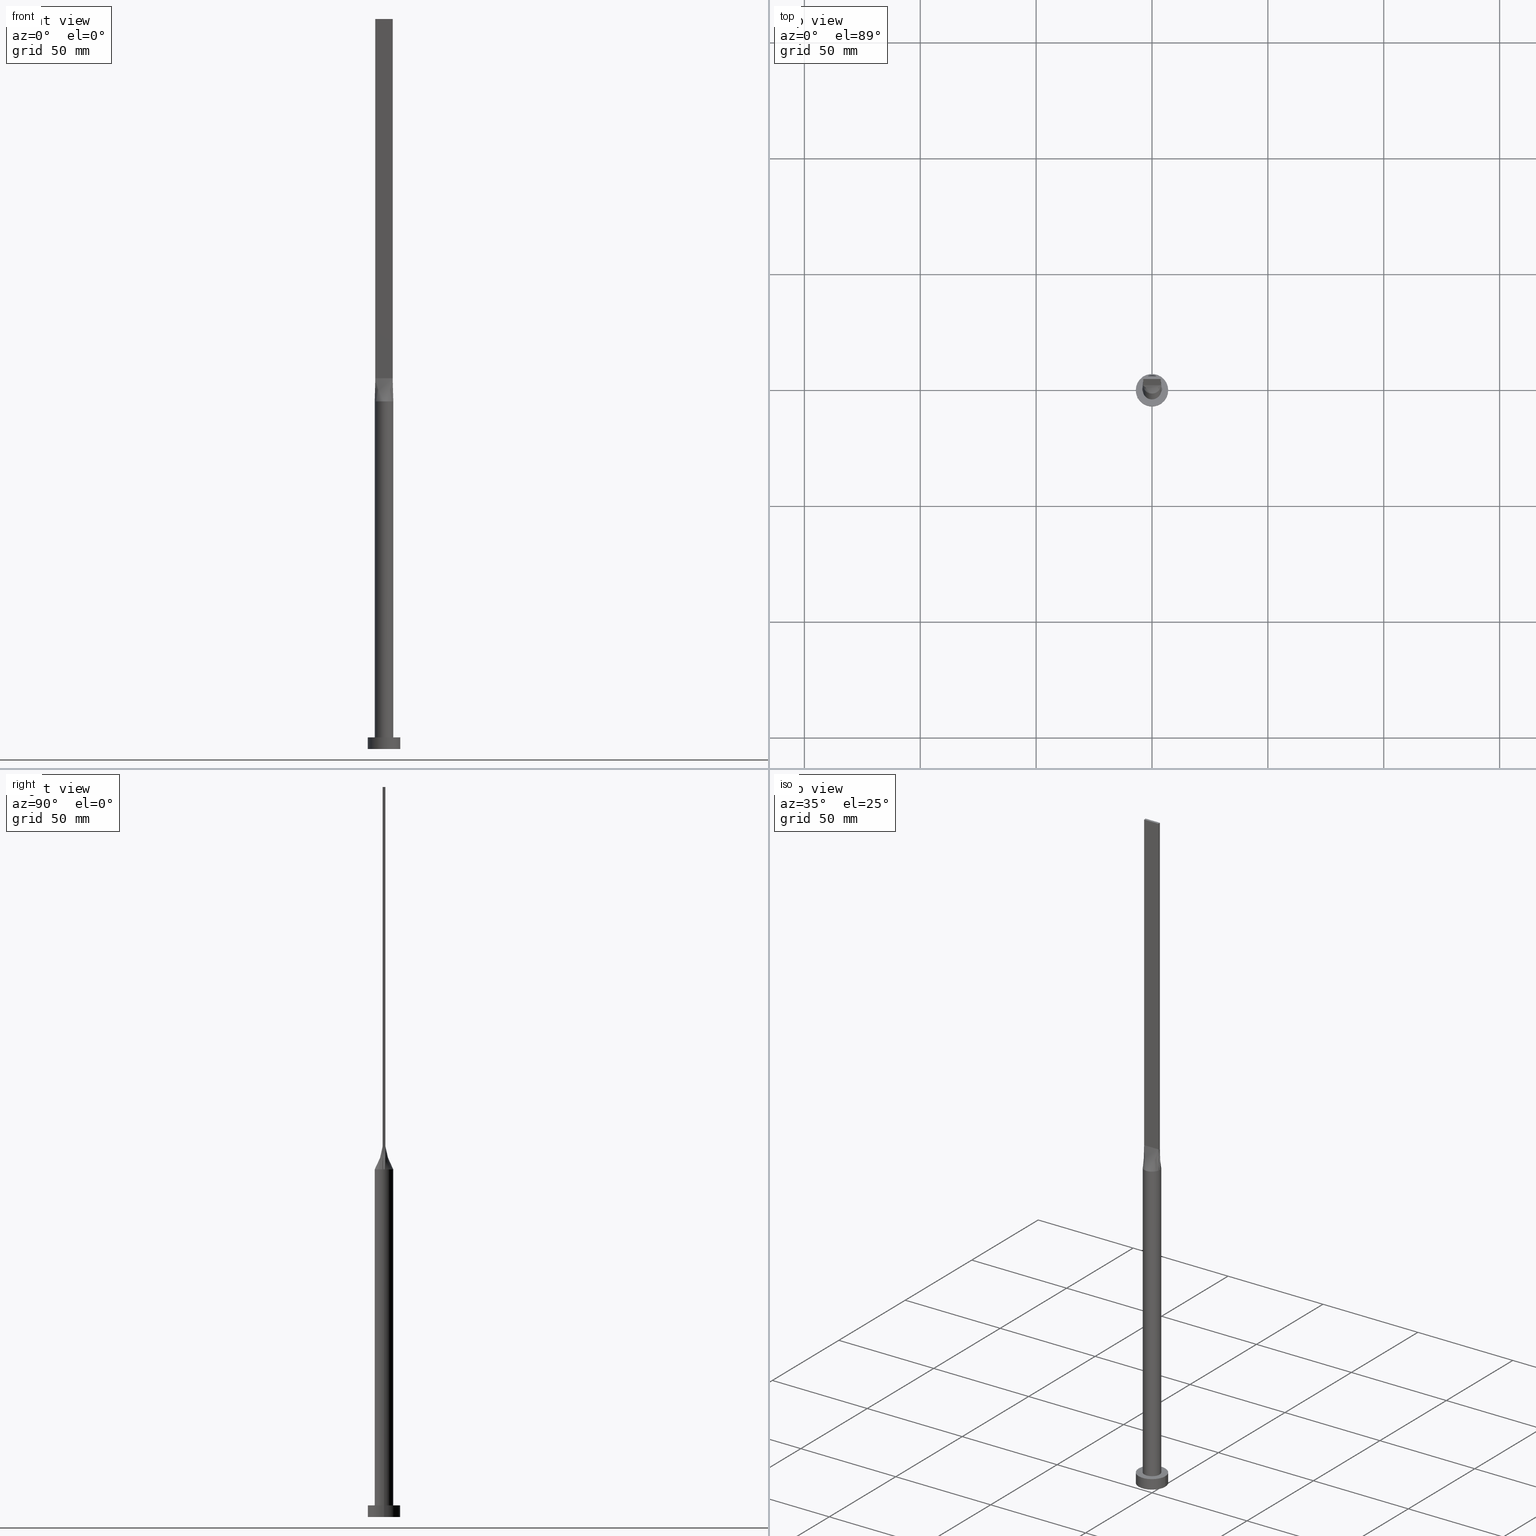
[diagram: canonical four-view strip — front | top / right | iso, engineering-drawing reading convention]
A machine part, canonical four-view strip (front | top / right | iso — engineering-drawing reading convention). The complete STEP part file that produces these views, byte-faithful:
ISO-10303-21;
HEADER;
FILE_DESCRIPTION (( 'STEP AP203' ),
    '1' );
FILE_NAME ('5bc6.STEP',
    '2023-02-13T10:46:18',
    ( '' ),
    ( '' ),
    'SwSTEP 2.0',
    'SolidWorks 2019',
    '' );
FILE_SCHEMA (( 'CONFIG_CONTROL_DESIGN' ));
ENDSEC;

DATA;
#1 = UNCERTAINTY_MEASURE_WITH_UNIT (LENGTH_MEASURE( 1.000000000000000082E-05 ), #64, 'distance_accuracy_value', 'NONE');
#2 = DIRECTION ( 'NONE',  ( 0.000000000000000000, 0.000000000000000000, 1.000000000000000000 ) ) ;
#3 = CARTESIAN_POINT ( 'NONE',  ( 3.897760447583618948, 0.9569750049467118380, 149.9999999999999716 ) ) ;
#4 = CARTESIAN_POINT ( 'NONE',  ( 1.134810363096319108, -3.874001625491798162, 150.0000000000000000 ) ) ;
#5 = DIRECTION ( 'NONE',  ( 1.000000000000000000, 0.000000000000000000, 0.000000000000000000 ) ) ;
#6 = ORIENTED_EDGE ( 'NONE', *, *, #313, .T. ) ;
#7 = CARTESIAN_POINT ( 'NONE',  ( 3.949762527666821565, -0.6319620044266891501, 150.0000000000000000 ) ) ;
#8 = DIRECTION ( 'NONE',  ( 0.000000000000000000, 0.000000000000000000, 1.000000000000000000 ) ) ;
#9 = CARTESIAN_POINT ( 'NONE',  ( 0.5684794080625145130, 4.000000000000000000, 150.0000000000000000 ) ) ;
#10 = CARTESIAN_POINT ( 'NONE',  ( 3.461914487322979017, 2.043998057340944197, 150.0000000000000000 ) ) ;
#11 = CC_DESIGN_PERSON_AND_ORGANIZATION_ASSIGNMENT ( #253, #564, ( #394 ) ) ;
#12 = CARTESIAN_POINT ( 'NONE',  ( 0.000000000000000000, 0.000000000000000000, 150.0000000000000000 ) ) ;
#13 = APPLICATION_CONTEXT ( 'configuration controlled 3d designs of mechanical parts and assemblies' ) ;
#14 = PERSON_AND_ORGANIZATION ( #249, #267 ) ;
#15 = ORIENTED_EDGE ( 'NONE', *, *, #321, .F. ) ;
#16 = LOCAL_TIME ( 11, 46, 18.00000000000000000, #569 ) ;
#17 = ORIENTED_EDGE ( 'NONE', *, *, #377, .F. ) ;
#18 = CC_DESIGN_DATE_AND_TIME_ASSIGNMENT ( #246, #296, ( #217 ) ) ;
#19 = EDGE_LOOP ( 'NONE', ( #207, #339, #467, #167, #149, #15 ) ) ;
#20 = CARTESIAN_POINT ( 'NONE',  ( -2.187500000000000000, 0.6000000000000000888, 159.9999999999999716 ) ) ;
#21 = VERTEX_POINT ( 'NONE', #71 ) ;
#22 = VECTOR ( 'NONE', #526, 1000.000000000000000 ) ;
#23 = VERTEX_POINT ( 'NONE', #36 ) ;
#24 = DIRECTION ( 'NONE',  ( -0.000000000000000000, -0.000000000000000000, -1.000000000000000000 ) ) ;
#25 = EDGE_CURVE ( 'NONE', #114, #558, #85, .T. ) ;
#26 = VERTEX_POINT ( 'NONE', #117 ) ;
#27 = DIRECTION ( 'NONE',  ( -1.000000000000000000, 5.782411586589357392E-17, 0.000000000000000000 ) ) ;
#28 = VECTOR ( 'NONE', #567, 1000.000000000000000 ) ;
#29 = CALENDAR_DATE ( 2023, 13, 2 ) ;
#30 = ORIENTED_EDGE ( 'NONE', *, *, #444, .F. ) ;
#31 = CARTESIAN_POINT ( 'NONE',  ( -7.000000000000000000, 0.000000000000000000, 5.000000000000000000 ) ) ;
#32 = DIRECTION ( 'NONE',  ( 0.01997216621675831222, -0.003195546594681202349, 0.9997954296047624201 ) ) ;
#33 = CIRCLE ( 'NONE', #222, 4.000000000000000000 ) ;
#34 = LINE ( 'NONE', #442, #325 ) ;
#35 = DATE_AND_TIME ( #576, #210 ) ;
#36 = CARTESIAN_POINT ( 'NONE',  ( 3.750000000000000000, 0.6000000000000001998, 160.0000000000000000 ) ) ;
#37 = CARTESIAN_POINT ( 'NONE',  ( 0.000000000000000000, 0.000000000000000000, 150.0000000000000000 ) ) ;
#38 = CARTESIAN_POINT ( 'NONE',  ( 3.999842262273348936, 9.852009208038395466E-16, 150.0000000000000000 ) ) ;
#39 = B_SPLINE_SURFACE_WITH_KNOTS ( 'NONE', 3, 1, ( 
 ( #134, #415 ),
 ( #3, #93 ),
 ( #320, #503 ),
 ( #10, #445 ),
 ( #221, #581 ),
 ( #175, #132 ),
 ( #177, #314 ),
 ( #269, #451 ),
 ( #471, #418 ),
 ( #235, #109 ),
 ( #425, #148 ),
 ( #58, #511 ),
 ( #466, #239 ),
 ( #189, #20 ),
 ( #111, #562 ),
 ( #152, #381 ),
 ( #513, #281 ),
 ( #461, #55 ) ),
 .UNSPECIFIED., .F., .F., .F.,
 ( 4, 2, 2, 2, 2, 2, 2, 2, 4 ),
 ( 2, 2 ),
 ( 0.000000000000000000, 0.1249999999999999445, 0.2499999999999998890, 0.3749999999999998335, 0.4999999999999997780, 0.6249999999999997780, 0.7499999999999998890, 0.8749999999999998890, 1.000000000000000000 ),
 ( 0.000000000000000000, 1.000000000000000000 ),
 .UNSPECIFIED. ) ;
#40 = DIRECTION ( 'NONE',  ( 0.000000000000000000, -1.000000000000000000, 0.000000000000000000 ) ) ;
#41 = LINE ( 'NONE', #312, #277 ) ;
#42 = CARTESIAN_POINT ( 'NONE',  ( 3.949762527666821565, 0.6319620044266899273, 150.0000000000000000 ) ) ;
#43 = AXIS2_PLACEMENT_3D ( 'NONE', #326, #329, #145 ) ;
#44 = CARTESIAN_POINT ( 'NONE',  ( 3.219262664220058134, 2.422342486356523938, 150.0000000000000000 ) ) ;
#45 = CARTESIAN_POINT ( 'NONE',  ( -4.000000000000000000, 0.000000000000000000, 150.0000000000000000 ) ) ;
#46 = DIRECTION ( 'NONE',  ( 0.000000000000000000, 0.000000000000000000, 1.000000000000000000 ) ) ;
#47 = CARTESIAN_POINT ( 'NONE',  ( 3.749999999999999556, 0.4000000000000007994, 159.9999999999999716 ) ) ;
#48 = ORIENTED_EDGE ( 'NONE', *, *, #383, .T. ) ;
#49 = CARTESIAN_POINT ( 'NONE',  ( -2.127794970397209884, 3.430476893735948440, 150.0000000000000000 ) ) ;
#50 = CARTESIAN_POINT ( 'NONE',  ( 4.000000000000000000, 4.898587196589412829E-16, 150.0000000000000000 ) ) ;
#51 = EDGE_LOOP ( 'NONE', ( #243, #17, #373, #330 ) ) ;
#52 = PLANE ( 'NONE',  #545 ) ;
#53 = PLANE ( 'NONE',  #43 ) ;
#54 = VERTEX_POINT ( 'NONE', #570 ) ;
#55 = CARTESIAN_POINT ( 'NONE',  ( -3.750000000000000000, 0.6000000000000001998, 160.0000000000000000 ) ) ;
#56 = EDGE_LOOP ( 'NONE', ( #577, #437, #65, #378 ) ) ;
#57 = EDGE_CURVE ( 'NONE', #472, #26, #160, .T. ) ;
#58 = CARTESIAN_POINT ( 'NONE',  ( -2.127794970397209884, 3.430476893735948440, 150.0000000000000000 ) ) ;
#59 = EDGE_LOOP ( 'NONE', ( #311, #463 ) ) ;
#60 = ADVANCED_FACE ( 'NONE', ( #263, #565 ), #487, .T. ) ;
#61 = CC_DESIGN_APPROVAL ( #80, ( #259 ) ) ;
#62 = DIRECTION ( 'NONE',  ( 1.000000000000000000, 0.000000000000000000, 0.000000000000000000 ) ) ;
#63 = ORIENTED_EDGE ( 'NONE', *, *, #427, .T. ) ;
#64 =( LENGTH_UNIT ( ) NAMED_UNIT ( * ) SI_UNIT ( .MILLI., .METRE. ) );
#65 = ORIENTED_EDGE ( 'NONE', *, *, #358, .F. ) ;
#66 = CLOSED_SHELL ( 'NONE', ( #260, #178, #475, #60, #552, #159, #165, #501, #395, #532, #464, #347, #340, #405, #334 ) ) ;
#67 = EDGE_CURVE ( 'NONE', #54, #439, #434, .T. ) ;
#68 = PERSON_AND_ORGANIZATION_ROLE ( 'creator' ) ;
#69 = ORIENTED_EDGE ( 'NONE', *, *, #482, .T. ) ;
#70 = DATE_AND_TIME ( #169, #423 ) ;
#71 = CARTESIAN_POINT ( 'NONE',  ( -3.750000000000000000, -0.5999999999999993117, 160.0000000000000000 ) ) ;
#72 = CARTESIAN_POINT ( 'NONE',  ( -3.949762527666821565, -0.6319620044266894832, 150.0000000000000000 ) ) ;
#73 = CALENDAR_DATE ( 2023, 13, 2 ) ;
#74 = VERTEX_POINT ( 'NONE', #483 ) ;
#75 = DIRECTION ( 'NONE',  ( 0.000000000000000000, 0.000000000000000000, 1.000000000000000000 ) ) ;
#76 = VECTOR ( 'NONE', #499, 1000.000000000000000 ) ;
#77 = PERSON_AND_ORGANIZATION ( #249, #267 ) ;
#78 = EDGE_LOOP ( 'NONE', ( #150, #557, #284, #94, #452 ) ) ;
#79 = CARTESIAN_POINT ( 'NONE',  ( -3.949762527666821565, 0.6319620044266903713, 150.0000000000000000 ) ) ;
#80 = APPROVAL ( #479, 'NEUR�EN�' ) ;
#81 = COORDINATED_UNIVERSAL_TIME_OFFSET ( 1, 0, .AHEAD. ) ;
#82 = CARTESIAN_POINT ( 'NONE',  ( -3.437499999999999112, -0.5999999999999993117, 160.0000000000000000 ) ) ;
#83 = AXIS2_PLACEMENT_3D ( 'NONE', #158, #481, #301 ) ;
#84 = CARTESIAN_POINT ( 'NONE',  ( 3.750000000000000000, -0.5999999999999997558, 315.0000000000000000 ) ) ;
#85 = LINE ( 'NONE', #203, #419 ) ;
#86 = DIRECTION ( 'NONE',  ( 0.000000000000000000, 0.000000000000000000, 1.000000000000000000 ) ) ;
#87 = DESIGN_CONTEXT ( 'detailed design', #13, 'design' ) ;
#88 = CARTESIAN_POINT ( 'NONE',  ( 3.750000000000000000, 0.6000000000000001998, 315.0000000000000000 ) ) ;
#89 = EDGE_CURVE ( 'NONE', #156, #23, #261, .T. ) ;
#90 = DIRECTION ( 'NONE',  ( 0.000000000000000000, 0.000000000000000000, 1.000000000000000000 ) ) ;
#91 = ORIENTED_EDGE ( 'NONE', *, *, #470, .F. ) ;
#92 = CARTESIAN_POINT ( 'NONE',  ( 0.5684794080625150681, -4.000000000000000888, 150.0000000000000000 ) ) ;
#93 = CARTESIAN_POINT ( 'NONE',  ( 3.437499999999999556, 0.6000000000000001998, 160.0000000000000000 ) ) ;
#94 = ORIENTED_EDGE ( 'NONE', *, *, #383, .F. ) ;
#95 = CC_DESIGN_APPROVAL ( #542, ( #217 ) ) ;
#96 = CARTESIAN_POINT ( 'NONE',  ( 2.127794970397208107, 3.430476893735948885, 150.0000000000000000 ) ) ;
#97 = DIRECTION ( 'NONE',  ( -1.000000000000000000, 0.000000000000000000, 0.000000000000000000 ) ) ;
#98 = CARTESIAN_POINT ( 'NONE',  ( -0.5684794080625158452, 3.999999999999999112, 149.9999999999999432 ) ) ;
#99 = LINE ( 'NONE', #549, #489 ) ;
#100 = CARTESIAN_POINT ( 'NONE',  ( 3.125000000000000000, -0.5999999999999996447, 159.9999999999999716 ) ) ;
#101 = EDGE_LOOP ( 'NONE', ( #285, #506, #289, #336, #519 ) ) ;
#102 = CIRCLE ( 'NONE', #294, 4.000000000000000000 ) ;
#103 = CARTESIAN_POINT ( 'NONE',  ( 3.750000000000000000, 0.6000000000000001998, 315.0000000000000000 ) ) ;
#104 = PERSON_AND_ORGANIZATION_ROLE ( 'design_owner' ) ;
#105 = ORIENTED_EDGE ( 'NONE', *, *, #291, .T. ) ;
#106 = MANIFOLD_SOLID_BREP ( 'P�idat vysunut�m5', #66 ) ;
#107 = CARTESIAN_POINT ( 'NONE',  ( -3.750000000000000000, 0.6000000000000001998, 160.0000000000000000 ) ) ;
#108 = ORIENTED_EDGE ( 'NONE', *, *, #509, .T. ) ;
#109 = CARTESIAN_POINT ( 'NONE',  ( -0.3125000000000017764, 0.6000000000000000888, 159.9999999999999716 ) ) ;
#110 = VERTEX_POINT ( 'NONE', #304 ) ;
#111 = CARTESIAN_POINT ( 'NONE',  ( -3.461914487322979905, 2.043998057340944197, 150.0000000000000568 ) ) ;
#112 = EDGE_LOOP ( 'NONE', ( #48, #254, #290, #333 ) ) ;
#113 = CC_DESIGN_PERSON_AND_ORGANIZATION_ASSIGNMENT ( #396, #68, ( #259 ) ) ;
#114 = VERTEX_POINT ( 'NONE', #157 ) ;
#115 = AXIS2_PLACEMENT_3D ( 'NONE', #402, #133, #174 ) ;
#116 = PERSON_AND_ORGANIZATION ( #249, #267 ) ;
#117 = CARTESIAN_POINT ( 'NONE',  ( -7.000000000000000000, 0.000000000000000000, 0.000000000000000000 ) ) ;
#118 = VECTOR ( 'NONE', #155, 1000.000000000000000 ) ;
#119 = PERSON_AND_ORGANIZATION ( #249, #267 ) ;
#120 = CARTESIAN_POINT ( 'NONE',  ( -3.461914487322979905, -2.043998057340941976, 150.0000000000000284 ) ) ;
#121 = CARTESIAN_POINT ( 'NONE',  ( 0.000000000000000000, 0.000000000000000000, 5.000000000000000000 ) ) ;
#122 = SHAPE_DEFINITION_REPRESENTATION ( #213, #299 ) ;
#123 = DIRECTION ( 'NONE',  ( 1.000000000000000000, 0.000000000000000000, -0.000000000000000000 ) ) ;
#124 = CARTESIAN_POINT ( 'NONE',  ( -3.849881263833410561, -0.6159810022133443974, 155.0000000000000000 ) ) ;
#125 = B_SPLINE_SURFACE_WITH_KNOTS ( 'NONE', 3, 1, ( 
 ( #505, #457 ),
 ( #494, #323 ),
 ( #276, #551 ),
 ( #232, #454 ),
 ( #184, #47 ),
 ( #42, #357 ) ),
 .UNSPECIFIED., .F., .F., .F.,
 ( 4, 2, 4 ),
 ( 2, 2 ),
 ( 0.000000000000000000, 0.5000000000000000000, 1.000000000000000000 ),
 ( 0.000000000000000000, 1.000000000000000000 ),
 .UNSPECIFIED. ) ;
#126 = CARTESIAN_POINT ( 'NONE',  ( 3.950097303404373150, 0.6320148730971616446, 150.0000000000000000 ) ) ;
#127 = DIRECTION ( 'NONE',  ( 1.000000000000000000, 0.000000000000000000, -0.000000000000000000 ) ) ;
#128 = VECTOR ( 'NONE', #317, 1000.000000000000000 ) ;
#129 = CARTESIAN_POINT ( 'NONE',  ( -1.562499999999996891, -0.5999999999999994227, 160.0000000000000000 ) ) ;
#130 = LINE ( 'NONE', #433, #147 ) ;
#131 = DIRECTION ( 'NONE',  ( 1.000000000000000000, 0.000000000000000000, 0.000000000000000000 ) ) ;
#132 = CARTESIAN_POINT ( 'NONE',  ( 1.562499999999998446, 0.6000000000000000888, 159.9999999999999716 ) ) ;
#133 = DIRECTION ( 'NONE',  ( -0.000000000000000000, -0.000000000000000000, -1.000000000000000000 ) ) ;
#134 = CARTESIAN_POINT ( 'NONE',  ( 3.949762527666821565, 0.6319620044266911485, 150.0000000000000000 ) ) ;
#135 = CARTESIAN_POINT ( 'NONE',  ( 0.000000000000000000, 0.000000000000000000, 150.0000000000000000 ) ) ;
#136 = AXIS2_PLACEMENT_3D ( 'NONE', #12, #234, #417 ) ;
#137 = CARTESIAN_POINT ( 'NONE',  ( 3.750000000000000000, 0.6000000000000001998, 315.0000000000000000 ) ) ;
#138 = ORIENTED_EDGE ( 'NONE', *, *, #509, .F. ) ;
#139 = LOCAL_TIME ( 11, 46, 18.00000000000000000, #436 ) ;
#140 = CARTESIAN_POINT ( 'NONE',  ( 3.461914487322979017, 2.043998057340944197, 150.0000000000000000 ) ) ;
#141 = FACE_OUTER_BOUND ( 'NONE', #56, .T. ) ;
#142 = CARTESIAN_POINT ( 'NONE',  ( -3.219262664220059023, 2.422342486356523938, 150.0000000000000284 ) ) ;
#143 = PLANE ( 'NONE',  #173 ) ;
#144 = DIRECTION ( 'NONE',  ( 0.000000000000000000, 0.000000000000000000, 1.000000000000000000 ) ) ;
#145 = DIRECTION ( 'NONE',  ( 1.000000000000000000, 0.000000000000000000, -0.000000000000000000 ) ) ;
#146 = EDGE_LOOP ( 'NONE', ( #105, #69, #512, #236 ) ) ;
#147 = VECTOR ( 'NONE', #24, 1000.000000000000000 ) ;
#148 = CARTESIAN_POINT ( 'NONE',  ( -0.6250000000000012212, 0.6000000000000000888, 159.9999999999999716 ) ) ;
#149 = ORIENTED_EDGE ( 'NONE', *, *, #252, .F. ) ;
#150 = ORIENTED_EDGE ( 'NONE', *, *, #252, .T. ) ;
#151 = AXIS2_PLACEMENT_3D ( 'NONE', #530, #297, #443 ) ;
#152 = CARTESIAN_POINT ( 'NONE',  ( -3.800365609718893811, 1.311488165564686392, 150.0000000000000284 ) ) ;
#153 = VERTEX_POINT ( 'NONE', #351 ) ;
#154 = EDGE_CURVE ( 'NONE', #21, #153, #480, .T. ) ;
#155 = DIRECTION ( 'NONE',  ( -0.000000000000000000, -0.000000000000000000, -1.000000000000000000 ) ) ;
#156 = VERTEX_POINT ( 'NONE', #126 ) ;
#157 = CARTESIAN_POINT ( 'NONE',  ( -3.950102418235696522, 0.6320155757311002320, 150.0000000000000000 ) ) ;
#158 = CARTESIAN_POINT ( 'NONE',  ( 0.000000000000000000, 0.000000000000000000, 0.000000000000000000 ) ) ;
#159 = ADVANCED_FACE ( 'NONE', ( #212 ), #162, .T. ) ;
#160 = CIRCLE ( 'NONE', #274, 7.000000000000000000 ) ;
#161 = DATE_TIME_ROLE ( 'classification_date' ) ;
#162 = CYLINDRICAL_SURFACE ( 'NONE', #151, 4.000000000000000000 ) ;
#163 = FACE_OUTER_BOUND ( 'NONE', #363, .T. ) ;
#164 = CIRCLE ( 'NONE', #136, 4.000000000000000000 ) ;
#165 = ADVANCED_FACE ( 'NONE', ( #397 ), #578, .T. ) ;
#166 = APPROVAL_ROLE ( '' ) ;
#167 = ORIENTED_EDGE ( 'NONE', *, *, #507, .F. ) ;
#168 = DIRECTION ( 'NONE',  ( -0.000000000000000000, 0.000000000000000000, -1.000000000000000000 ) ) ;
#169 = CALENDAR_DATE ( 2023, 13, 2 ) ;
#170 = CARTESIAN_POINT ( 'NONE',  ( -3.800365609718892923, -1.311488165564685726, 150.0000000000000284 ) ) ;
#171 = DIRECTION ( 'NONE',  ( 0.000000000000000000, -1.000000000000000000, 0.000000000000000000 ) ) ;
#172 = DIRECTION ( 'NONE',  ( -0.000000000000000000, -0.000000000000000000, -1.000000000000000000 ) ) ;
#173 = AXIS2_PLACEMENT_3D ( 'NONE', #137, #40, #360 ) ;
#174 = DIRECTION ( 'NONE',  ( -1.000000000000000000, 0.000000000000000000, 0.000000000000000000 ) ) ;
#175 = CARTESIAN_POINT ( 'NONE',  ( 2.553164211252348714, 3.116528153703943538, 150.0000000000000000 ) ) ;
#176 = CARTESIAN_POINT ( 'NONE',  ( 2.127794970397208552, -3.430476893735948440, 150.0000000000000000 ) ) ;
#177 = CARTESIAN_POINT ( 'NONE',  ( 2.127794970397208107, 3.430476893735948885, 150.0000000000000000 ) ) ;
#178 = ADVANCED_FACE ( 'NONE', ( #278 ), #316, .T. ) ;
#179 = CARTESIAN_POINT ( 'NONE',  ( 3.897760447583619836, -0.9569750049467118380, 150.0000000000000284 ) ) ;
#180 = CARTESIAN_POINT ( 'NONE',  ( 0.000000000000000000, 0.000000000000000000, 5.000000000000000000 ) ) ;
#181 = EDGE_LOOP ( 'NONE', ( #421, #318, #429, #6 ) ) ;
#182 = CARTESIAN_POINT ( 'NONE',  ( 0.3125000000000029976, -0.5999999999999995337, 159.9999999999999716 ) ) ;
#183 = CC_DESIGN_PERSON_AND_ORGANIZATION_ASSIGNMENT ( #77, #256, ( #259 ) ) ;
#184 = CARTESIAN_POINT ( 'NONE',  ( 3.983043858920071845, 0.4239536840938771811, 150.0000000000000000 ) ) ;
#185 = CARTESIAN_POINT ( 'NONE',  ( -0.6249999999999965583, -0.5999999999999994227, 160.0000000000000000 ) ) ;
#186 = FACE_OUTER_BOUND ( 'NONE', #51, .T. ) ;
#187 = CARTESIAN_POINT ( 'NONE',  ( 0.000000000000000000, 0.000000000000000000, 315.0000000000000000 ) ) ;
#188 =( NAMED_UNIT ( * ) SI_UNIT ( $, .STERADIAN. ) SOLID_ANGLE_UNIT ( ) );
#189 = CARTESIAN_POINT ( 'NONE',  ( -3.219262664220059023, 2.422342486356523938, 150.0000000000000284 ) ) ;
#190 = EDGE_LOOP ( 'NONE', ( #192, #108 ) ) ;
#191 = APPROVAL_PERSON_ORGANIZATION ( #116, #80, #473 ) ;
#192 = ORIENTED_EDGE ( 'NONE', *, *, #377, .T. ) ;
#193 = EDGE_CURVE ( 'NONE', #349, #472, #539, .T. ) ;
#194 = APPLICATION_PROTOCOL_DEFINITION ( 'international standard', 'config_control_design', 1994, #215 ) ;
#195 = ORIENTED_EDGE ( 'NONE', *, *, #67, .T. ) ;
#196 = CARTESIAN_POINT ( 'NONE',  ( 3.750000000000000000, -0.5999999999999997558, 315.0000000000000000 ) ) ;
#197 = ORIENTED_EDGE ( 'NONE', *, *, #538, .F. ) ;
#198 = VECTOR ( 'NONE', #204, 1000.000000000000000 ) ;
#199 = COORDINATED_UNIVERSAL_TIME_OFFSET ( 1, 0, .AHEAD. ) ;
#200 = EDGE_LOOP ( 'NONE', ( #91, #270, #469, #250, #233, #431 ) ) ;
#201 = CARTESIAN_POINT ( 'NONE',  ( -3.750000000000000000, -0.5999999999999993117, 315.0000000000000000 ) ) ;
#202 = DATE_AND_TIME ( #29, #139 ) ;
#203 = CARTESIAN_POINT ( 'NONE',  ( -3.849881263833410561, 0.6159810022133451746, 155.0000000000000000 ) ) ;
#204 = DIRECTION ( 'NONE',  ( -0.000000000000000000, 1.000000000000000000, -0.000000000000000000 ) ) ;
#205 = AXIS2_PLACEMENT_3D ( 'NONE', #411, #536, #447 ) ;
#206 = PERSON_AND_ORGANIZATION ( #249, #267 ) ;
#207 = ORIENTED_EDGE ( 'NONE', *, *, #574, .F. ) ;
#208 = DIRECTION ( 'NONE',  ( 1.000000000000000000, 0.000000000000000000, 0.000000000000000000 ) ) ;
#209 = AXIS2_PLACEMENT_3D ( 'NONE', #187, #144, #460 ) ;
#210 = LOCAL_TIME ( 11, 46, 18.00000000000000000, #81 ) ;
#211 = COORDINATED_UNIVERSAL_TIME_OFFSET ( 1, 0, .AHEAD. ) ;
#212 = FACE_OUTER_BOUND ( 'NONE', #200, .T. ) ;
#213 = PRODUCT_DEFINITION_SHAPE ( 'NONE', 'NONE',  #217 ) ;
#214 = DIRECTION ( 'NONE',  ( 1.000000000000000000, 9.769962616701377556E-15, 0.000000000000000000 ) ) ;
#215 = APPLICATION_CONTEXT ( 'configuration controlled 3d designs of mechanical parts and assemblies' ) ;
#216 = CARTESIAN_POINT ( 'NONE',  ( -2.553164211252349158, -3.116528153703943094, 150.0000000000000000 ) ) ;
#217 = PRODUCT_DEFINITION ( 'NEZN�M�', '', #259, #87 ) ;
#218 = FACE_OUTER_BOUND ( 'NONE', #112, .T. ) ;
#219 = AXIS2_PLACEMENT_3D ( 'NONE', #528, #389, #123 ) ;
#220 = CARTESIAN_POINT ( 'NONE',  ( -3.461914487322979905, 2.043998057340944197, 150.0000000000000568 ) ) ;
#221 = CARTESIAN_POINT ( 'NONE',  ( 3.219262664220058134, 2.422342486356523938, 150.0000000000000000 ) ) ;
#222 = AXIS2_PLACEMENT_3D ( 'NONE', #362, #90, #266 ) ;
#223 = CARTESIAN_POINT ( 'NONE',  ( 1.562500000000002665, -0.5999999999999996447, 159.9999999999999716 ) ) ;
#224 = CYLINDRICAL_SURFACE ( 'NONE', #571, 7.000000000000000000 ) ;
#225 = CARTESIAN_POINT ( 'NONE',  ( 1.134810363096318664, 3.874001625491799050, 149.9999999999999716 ) ) ;
#226 = DIRECTION ( 'NONE',  ( -0.000000000000000000, -0.000000000000000000, -1.000000000000000000 ) ) ;
#227 = CC_DESIGN_PERSON_AND_ORGANIZATION_ASSIGNMENT ( #119, #303, ( #217 ) ) ;
#228 = CIRCLE ( 'NONE', #446, 4.000000000000000000 ) ;
#229 = FACE_OUTER_BOUND ( 'NONE', #19, .T. ) ;
#230 = LINE ( 'NONE', #45, #355 ) ;
#231 = DIRECTION ( 'NONE',  ( -0.000000000000000000, -0.000000000000000000, -1.000000000000000000 ) ) ;
#232 = CARTESIAN_POINT ( 'NONE',  ( 3.999684524546696540, 0.2119768420469383408, 150.0000000000000000 ) ) ;
#233 = ORIENTED_EDGE ( 'NONE', *, *, #507, .T. ) ;
#234 = DIRECTION ( 'NONE',  ( 0.000000000000000000, 0.000000000000000000, 1.000000000000000000 ) ) ;
#235 = CARTESIAN_POINT ( 'NONE',  ( -0.5684794080625158452, 3.999999999999999112, 149.9999999999999432 ) ) ;
#236 = ORIENTED_EDGE ( 'NONE', *, *, #404, .T. ) ;
#237 = DIRECTION ( 'NONE',  ( 0.000000000000000000, 0.000000000000000000, 1.000000000000000000 ) ) ;
#238 = ORIENTED_EDGE ( 'NONE', *, *, #428, .F. ) ;
#239 = CARTESIAN_POINT ( 'NONE',  ( -1.562500000000000666, 0.6000000000000000888, 159.9999999999999716 ) ) ;
#240 = EDGE_LOOP ( 'NONE', ( #138, #474, #455, #238 ) ) ;
#241 = LOCAL_TIME ( 11, 46, 18.00000000000000000, #211 ) ;
#242 = FACE_OUTER_BOUND ( 'NONE', #59, .T. ) ;
#243 = ORIENTED_EDGE ( 'NONE', *, *, #193, .F. ) ;
#244 = CARTESIAN_POINT ( 'NONE',  ( -3.750000000000000000, 0.6000000000000001998, 315.0000000000000000 ) ) ;
#245 = VERTEX_POINT ( 'NONE', #38 ) ;
#246 = DATE_AND_TIME ( #348, #16 ) ;
#247 = EDGE_LOOP ( 'NONE', ( #560, #195, #426, #382 ) ) ;
#248 = CIRCLE ( 'NONE', #315, 4.000000000000000000 ) ;
#249 = PERSON ( 'NEUR�EN�', 'NEUR�EN�', 'NEUR�EN�', ('NEUR�EN�'), ('NEUR�EN�'), ('NEUR�EN�') ) ;
#250 = ORIENTED_EDGE ( 'NONE', *, *, #328, .F. ) ;
#251 = DIRECTION ( 'NONE',  ( -0.01997216621675831222, -0.003195546594681202349, -0.9997954296047624201 ) ) ;
#252 = EDGE_CURVE ( 'NONE', #114, #495, #228, .T. ) ;
#253 = PERSON_AND_ORGANIZATION ( #249, #267 ) ;
#254 = ORIENTED_EDGE ( 'NONE', *, *, #313, .F. ) ;
#255 = PLANE ( 'NONE',  #286 ) ;
#256 = PERSON_AND_ORGANIZATION_ROLE ( 'design_supplier' ) ;
#257 = DIRECTION ( 'NONE',  ( 1.000000000000000000, -5.782411586589357392E-17, 0.000000000000000000 ) ) ;
#258 = CARTESIAN_POINT ( 'NONE',  ( 7.000000000000000000, 8.572527594031473190E-16, 5.000000000000000000 ) ) ;
#259 = PRODUCT_DEFINITION_FORMATION_WITH_SPECIFIED_SOURCE ( 'LIBOVOLN�', '', #548, .NOT_KNOWN. ) ;
#260 = ADVANCED_FACE ( 'NONE', ( #229 ), #406, .T. ) ;
#261 = LINE ( 'NONE', #386, #28 ) ;
#262 = DIRECTION ( 'NONE',  ( 5.782411586589357392E-17, 1.000000000000000000, -0.000000000000000000 ) ) ;
#263 = FACE_BOUND ( 'NONE', #514, .T. ) ;
#264 = DIRECTION ( 'NONE',  ( 0.000000000000000000, 0.000000000000000000, 1.000000000000000000 ) ) ;
#265 = CARTESIAN_POINT ( 'NONE',  ( 1.250000000000002887, -0.5999999999999996447, 159.9999999999999716 ) ) ;
#266 = DIRECTION ( 'NONE',  ( 1.000000000000000000, 0.000000000000000000, 0.000000000000000000 ) ) ;
#267 = ORGANIZATION ( 'NEUR�EN�', 'NEUR�EN�', '' ) ;
#268 = CARTESIAN_POINT ( 'NONE',  ( 3.950097303404373150, 0.6320148730971616446, 150.0000000000000000 ) ) ;
#269 = CARTESIAN_POINT ( 'NONE',  ( 1.134810363096318664, 3.874001625491799050, 149.9999999999999716 ) ) ;
#270 = ORIENTED_EDGE ( 'NONE', *, *, #385, .F. ) ;
#271 = EDGE_CURVE ( 'NONE', #327, #23, #322, .T. ) ;
#272 = CARTESIAN_POINT ( 'NONE',  ( 2.187500000000001332, -0.5999999999999996447, 159.9999999999999716 ) ) ;
#273 = LINE ( 'NONE', #403, #384 ) ;
#274 = AXIS2_PLACEMENT_3D ( 'NONE', #491, #476, #400 ) ;
#275 = CARTESIAN_POINT ( 'NONE',  ( -1.134810363096319996, 3.874001625491799938, 150.0000000000000284 ) ) ;
#276 = CARTESIAN_POINT ( 'NONE',  ( 3.999684524546696540, -0.2119768420469393122, 150.0000000000000000 ) ) ;
#277 = VECTOR ( 'NONE', #496, 1000.000000000000000 ) ;
#278 = FACE_OUTER_BOUND ( 'NONE', #240, .T. ) ;
#279 = AXIS2_PLACEMENT_3D ( 'NONE', #401, #305, #86 ) ;
#280 = ORIENTED_EDGE ( 'NONE', *, *, #271, .T. ) ;
#281 = CARTESIAN_POINT ( 'NONE',  ( -3.437499999999999556, 0.6000000000000000888, 159.9999999999999716 ) ) ;
#282 = ORIENTED_EDGE ( 'NONE', *, *, #520, .F. ) ;
#283 = CARTESIAN_POINT ( 'NONE',  ( -3.950111798046394007, -0.6320171791297864994, 150.0000000000000000 ) ) ;
#284 = ORIENTED_EDGE ( 'NONE', *, *, #404, .F. ) ;
#285 = ORIENTED_EDGE ( 'NONE', *, *, #385, .T. ) ;
#286 = AXIS2_PLACEMENT_3D ( 'NONE', #522, #127, #168 ) ;
#287 = CIRCLE ( 'NONE', #337, 7.000000000000000000 ) ;
#288 = CC_DESIGN_PERSON_AND_ORGANIZATION_ASSIGNMENT ( #375, #104, ( #548 ) ) ;
#289 = ORIENTED_EDGE ( 'NONE', *, *, #89, .T. ) ;
#290 = ORIENTED_EDGE ( 'NONE', *, *, #67, .F. ) ;
#291 = EDGE_CURVE ( 'NONE', #544, #416, #410, .T. ) ;
#292 = CARTESIAN_POINT ( 'NONE',  ( -1.134810363096319996, -3.874001625491796830, 150.0000000000000000 ) ) ;
#293 = CARTESIAN_POINT ( 'NONE',  ( -3.983043858920071845, 0.4239536840938776252, 150.0000000000000000 ) ) ;
#294 = AXIS2_PLACEMENT_3D ( 'NONE', #37, #298, #214 ) ;
#295 = B_SPLINE_SURFACE_WITH_KNOTS ( 'NONE', 3, 1, ( 
 ( #79, #350 ),
 ( #293, #435 ),
 ( #345, #398 ),
 ( #478, #354 ),
 ( #390, #568 ),
 ( #72, #529 ) ),
 .UNSPECIFIED., .F., .F., .F.,
 ( 4, 2, 4 ),
 ( 2, 2 ),
 ( 0.000000000000000000, 0.5000000000000000000, 1.000000000000000000 ),
 ( 0.000000000000000000, 1.000000000000000000 ),
 .UNSPECIFIED. ) ;
#296 = DATE_TIME_ROLE ( 'creation_date' ) ;
#297 = DIRECTION ( 'NONE',  ( -0.000000000000000000, -0.000000000000000000, -1.000000000000000000 ) ) ;
#298 = DIRECTION ( 'NONE',  ( 0.000000000000000000, 0.000000000000000000, 1.000000000000000000 ) ) ;
#299 = ADVANCED_BREP_SHAPE_REPRESENTATION ( '5bc6', ( #106, #498 ), #374 ) ;
#300 = CARTESIAN_POINT ( 'NONE',  ( -3.750000000000000000, 0.6000000000000001998, 315.0000000000000000 ) ) ;
#301 = DIRECTION ( 'NONE',  ( 1.000000000000000000, 0.000000000000000000, 0.000000000000000000 ) ) ;
#302 = APPROVAL ( #391, 'NEUR�EN�' ) ;
#303 = PERSON_AND_ORGANIZATION_ROLE ( 'creator' ) ;
#304 = CARTESIAN_POINT ( 'NONE',  ( 3.750000000000000000, -0.5999999999999997558, 315.0000000000000000 ) ) ;
#305 = DIRECTION ( 'NONE',  ( -1.000000000000000000, 0.000000000000000000, 0.000000000000000000 ) ) ;
#306 = B_SPLINE_CURVE_WITH_KNOTS ( 'NONE', 3,
 ( #268, #550, #547, #140, #44, #450, #96, #225, #9, #98, #275, #49, #369, #142, #220, #309, #493, #371 ),
 .UNSPECIFIED., .F., .F.,
 ( 4, 2, 2, 2, 2, 2, 2, 2, 4 ),
 ( 0.000000000000000000, 0.1249999999999999445, 0.2499999999999998890, 0.3749999999999998335, 0.4999999999999997780, 0.6249999999999997780, 0.7499999999999998890, 0.8749999999999998890, 1.000000000000000000 ),
 .UNSPECIFIED. ) ;
#307 = CARTESIAN_POINT ( 'NONE',  ( -2.127794970397209884, -3.430476893735947996, 150.0000000000000000 ) ) ;
#308 = FACE_OUTER_BOUND ( 'NONE', #78, .T. ) ;
#309 = CARTESIAN_POINT ( 'NONE',  ( -3.800365609718893811, 1.311488165564686392, 150.0000000000000284 ) ) ;
#310 = FACE_OUTER_BOUND ( 'NONE', #563, .T. ) ;
#311 = ORIENTED_EDGE ( 'NONE', *, *, #366, .F. ) ;
#312 = CARTESIAN_POINT ( 'NONE',  ( -3.750000000000000000, -0.5999999999999993117, 315.0000000000000000 ) ) ;
#313 = EDGE_CURVE ( 'NONE', #439, #21, #41, .T. ) ;
#314 = CARTESIAN_POINT ( 'NONE',  ( 1.249999999999998446, 0.6000000000000000888, 159.9999999999999716 ) ) ;
#315 = AXIS2_PLACEMENT_3D ( 'NONE', #412, #8, #367 ) ;
#316 = CYLINDRICAL_SURFACE ( 'NONE', #115, 7.000000000000000000 ) ;
#317 = DIRECTION ( 'NONE',  ( -0.000000000000000000, -0.000000000000000000, -1.000000000000000000 ) ) ;
#318 = ORIENTED_EDGE ( 'NONE', *, *, #427, .F. ) ;
#319 = CARTESIAN_POINT ( 'NONE',  ( 2.553164211252348270, -3.116528153703943094, 149.9999999999999716 ) ) ;
#320 = CARTESIAN_POINT ( 'NONE',  ( 3.800365609718893367, 1.311488165564687058, 150.0000000000000284 ) ) ;
#321 = EDGE_CURVE ( 'NONE', #156, #114, #306, .T. ) ;
#322 = LINE ( 'NONE', #88, #465 ) ;
#323 = CARTESIAN_POINT ( 'NONE',  ( 3.749999999999999556, -0.3999999999999990785, 159.9999999999999716 ) ) ;
#324 = FACE_OUTER_BOUND ( 'NONE', #247, .T. ) ;
#325 = VECTOR ( 'NONE', #579, 1000.000000000000000 ) ;
#326 = CARTESIAN_POINT ( 'NONE',  ( 0.000000000000000000, 0.000000000000000000, 0.000000000000000000 ) ) ;
#327 = VERTEX_POINT ( 'NONE', #103 ) ;
#328 = EDGE_CURVE ( 'NONE', #495, #544, #164, .T. ) ;
#329 = DIRECTION ( 'NONE',  ( 0.000000000000000000, 0.000000000000000000, 1.000000000000000000 ) ) ;
#330 = ORIENTED_EDGE ( 'NONE', *, *, #366, .T. ) ;
#331 = VECTOR ( 'NONE', #257, 1000.000000000000000 ) ;
#332 = DIRECTION ( 'NONE',  ( 0.000000000000000000, 1.000000000000000000, 0.000000000000000000 ) ) ;
#333 = ORIENTED_EDGE ( 'NONE', *, *, #566, .T. ) ;
#334 = ADVANCED_FACE ( 'NONE', ( #324 ), #554, .T. ) ;
#335 = MECHANICAL_CONTEXT ( 'NONE', #215, 'mechanical' ) ;
#336 = ORIENTED_EDGE ( 'NONE', *, *, #368, .F. ) ;
#337 = AXIS2_PLACEMENT_3D ( 'NONE', #121, #75, #208 ) ;
#338 = LINE ( 'NONE', #196, #556 ) ;
#339 = ORIENTED_EDGE ( 'NONE', *, *, #470, .T. ) ;
#340 = ADVANCED_FACE ( 'NONE', ( #510 ), #52, .F. ) ;
#341 = APPROVAL_DATE_TIME ( #399, #542 ) ;
#342 = CARTESIAN_POINT ( 'NONE',  ( -3.949762527666821565, -0.6319620044266894832, 150.0000000000000000 ) ) ;
#343 = APPROVAL_STATUS ( 'not_yet_approved' ) ;
#344 = CARTESIAN_POINT ( 'NONE',  ( -3.897760447583618948, -0.9569750049467102837, 150.0000000000000568 ) ) ;
#345 = CARTESIAN_POINT ( 'NONE',  ( -3.999684524546696096, 0.2119768420469390069, 150.0000000000000000 ) ) ;
#346 = CIRCLE ( 'NONE', #508, 4.000000000000000000 ) ;
#347 = ADVANCED_FACE ( 'NONE', ( #218 ), #255, .F. ) ;
#348 = CALENDAR_DATE ( 2023, 13, 2 ) ;
#349 = VERTEX_POINT ( 'NONE', #258 ) ;
#350 = CARTESIAN_POINT ( 'NONE',  ( -3.750000000000000000, 0.6000000000000001998, 160.0000000000000000 ) ) ;
#351 = CARTESIAN_POINT ( 'NONE',  ( 3.750000000000000000, -0.5999999999999997558, 160.0000000000000000 ) ) ;
#352 = PLANE ( 'NONE',  #279 ) ;
#353 = CARTESIAN_POINT ( 'NONE',  ( -3.750000000000000000, -0.5999999999999993117, 160.0000000000000000 ) ) ;
#354 = CARTESIAN_POINT ( 'NONE',  ( -3.749999999999999556, -0.2000000000000000666, 159.9999999999999716 ) ) ;
#355 = VECTOR ( 'NONE', #226, 1000.000000000000000 ) ;
#356 = CARTESIAN_POINT ( 'NONE',  ( 0.000000000000000000, 0.000000000000000000, 150.0000000000000000 ) ) ;
#357 = CARTESIAN_POINT ( 'NONE',  ( 3.750000000000000000, 0.6000000000000001998, 160.0000000000000000 ) ) ;
#358 = EDGE_CURVE ( 'NONE', #23, #558, #492, .T. ) ;
#359 = CARTESIAN_POINT ( 'NONE',  ( 3.800365609718893367, -1.311488165564686614, 150.0000000000000000 ) ) ;
#360 = DIRECTION ( 'NONE',  ( 0.000000000000000000, -0.000000000000000000, -1.000000000000000000 ) ) ;
#361 = DIRECTION ( 'NONE',  ( 1.000000000000000000, 0.000000000000000000, 0.000000000000000000 ) ) ;
#362 = CARTESIAN_POINT ( 'NONE',  ( 0.000000000000000000, 0.000000000000000000, 5.000000000000000000 ) ) ;
#363 = EDGE_LOOP ( 'NONE', ( #518, #555, #197, #63 ) ) ;
#364 = CC_DESIGN_SECURITY_CLASSIFICATION ( #394, ( #259 ) ) ;
#365 = CARTESIAN_POINT ( 'NONE',  ( 3.219262664220059023, -2.422342486356523938, 150.0000000000000000 ) ) ;
#366 = EDGE_CURVE ( 'NONE', #26, #472, #477, .T. ) ;
#367 = DIRECTION ( 'NONE',  ( 1.000000000000000000, 0.000000000000000000, 0.000000000000000000 ) ) ;
#368 = EDGE_CURVE ( 'NONE', #153, #23, #438, .T. ) ;
#369 = CARTESIAN_POINT ( 'NONE',  ( -2.553164211252348714, 3.116528153703943538, 150.0000000000000000 ) ) ;
#370 = FACE_OUTER_BOUND ( 'NONE', #101, .T. ) ;
#371 = CARTESIAN_POINT ( 'NONE',  ( -3.950102418235696522, 0.6320155757311002320, 150.0000000000000000 ) ) ;
#372 = CARTESIAN_POINT ( 'NONE',  ( 0.000000000000000000, 0.000000000000000000, 0.000000000000000000 ) ) ;
#373 = ORIENTED_EDGE ( 'NONE', *, *, #428, .T. ) ;
#374 =( GEOMETRIC_REPRESENTATION_CONTEXT ( 3 ) GLOBAL_UNCERTAINTY_ASSIGNED_CONTEXT ( ( #1 ) ) GLOBAL_UNIT_ASSIGNED_CONTEXT ( ( #64, #559, #188 ) ) REPRESENTATION_CONTEXT ( 'NONE', 'WORKASPACE' ) );
#375 = PERSON_AND_ORGANIZATION ( #249, #267 ) ;
#376 = ORIENTED_EDGE ( 'NONE', *, *, #523, .F. ) ;
#377 = EDGE_CURVE ( 'NONE', #424, #349, #287, .T. ) ;
#378 = ORIENTED_EDGE ( 'NONE', *, *, #89, .F. ) ;
#379 = DIRECTION ( 'NONE',  ( 1.000000000000000000, 0.000000000000000000, 0.000000000000000000 ) ) ;
#380 = ORIENTED_EDGE ( 'NONE', *, *, #358, .T. ) ;
#381 = CARTESIAN_POINT ( 'NONE',  ( -3.124999999999999556, 0.6000000000000000888, 159.9999999999999716 ) ) ;
#382 = ORIENTED_EDGE ( 'NONE', *, *, #538, .T. ) ;
#383 = EDGE_CURVE ( 'NONE', #558, #21, #34, .T. ) ;
#384 = VECTOR ( 'NONE', #448, 1000.000000000000000 ) ;
#385 = EDGE_CURVE ( 'NONE', #416, #245, #102, .T. ) ;
#386 = CARTESIAN_POINT ( 'NONE',  ( 3.849881263833410561, 0.6159810022133449525, 155.0000000000000000 ) ) ;
#387 = CARTESIAN_POINT ( 'NONE',  ( -3.750000000000000000, 0.6000000000000001998, 160.0000000000000000 ) ) ;
#388 = SECURITY_CLASSIFICATION_LEVEL ( 'unclassified' ) ;
#389 = DIRECTION ( 'NONE',  ( 0.000000000000000000, 0.000000000000000000, 1.000000000000000000 ) ) ;
#390 = CARTESIAN_POINT ( 'NONE',  ( -3.983043858920070956, -0.4239536840938767370, 150.0000000000000000 ) ) ;
#391 = APPROVAL_STATUS ( 'not_yet_approved' ) ;
#392 = CARTESIAN_POINT ( 'NONE',  ( -2.499999999999997780, -0.5999999999999994227, 159.9999999999999716 ) ) ;
#393 = DIRECTION ( 'NONE',  ( -1.000000000000000000, -0.000000000000000000, -0.000000000000000000 ) ) ;
#394 = SECURITY_CLASSIFICATION ( '', '', #388 ) ;
#395 = ADVANCED_FACE ( 'NONE', ( #308 ), #295, .T. ) ;
#396 = PERSON_AND_ORGANIZATION ( #249, #267 ) ;
#397 = FACE_OUTER_BOUND ( 'NONE', #146, .T. ) ;
#398 = CARTESIAN_POINT ( 'NONE',  ( -3.749999999999999556, 0.1999999999999997335, 159.9999999999999716 ) ) ;
#399 = DATE_AND_TIME ( #73, #241 ) ;
#400 = DIRECTION ( 'NONE',  ( 1.000000000000000000, 0.000000000000000000, 0.000000000000000000 ) ) ;
#401 = CARTESIAN_POINT ( 'NONE',  ( 3.750000000000000000, -0.5999999999999997558, 315.0000000000000000 ) ) ;
#402 = CARTESIAN_POINT ( 'NONE',  ( 0.000000000000000000, 0.000000000000000000, 5.000000000000000000 ) ) ;
#403 = CARTESIAN_POINT ( 'NONE',  ( 3.849881263833410561, -0.6159810022133445084, 155.0000000000000000 ) ) ;
#404 = EDGE_CURVE ( 'NONE', #21, #544, #575, .T. ) ;
#405 = ADVANCED_FACE ( 'NONE', ( #163 ), #352, .F. ) ;
#406 = CYLINDRICAL_SURFACE ( 'NONE', #205, 4.000000000000000000 ) ;
#407 = LINE ( 'NONE', #50, #128 ) ;
#408 = CARTESIAN_POINT ( 'NONE',  ( -0.3124999999999969469, -0.5999999999999995337, 160.0000000000000000 ) ) ;
#409 = DIRECTION ( 'NONE',  ( -1.000000000000000000, 0.000000000000000000, 0.000000000000000000 ) ) ;
#410 = CIRCLE ( 'NONE', #484, 4.000000000000000000 ) ;
#411 = CARTESIAN_POINT ( 'NONE',  ( 0.000000000000000000, 0.000000000000000000, 150.0000000000000000 ) ) ;
#412 = CARTESIAN_POINT ( 'NONE',  ( 0.000000000000000000, 0.000000000000000000, 5.000000000000000000 ) ) ;
#413 = VECTOR ( 'NONE', #251, 1000.000000000000000 ) ;
#414 = CARTESIAN_POINT ( 'NONE',  ( 7.000000000000000000, 8.572527594031473190E-16, 5.000000000000000000 ) ) ;
#415 = CARTESIAN_POINT ( 'NONE',  ( 3.750000000000000000, 0.6000000000000001998, 160.0000000000000000 ) ) ;
#416 = VERTEX_POINT ( 'NONE', #531 ) ;
#417 = DIRECTION ( 'NONE',  ( 1.000000000000000000, 0.000000000000000000, 0.000000000000000000 ) ) ;
#418 = CARTESIAN_POINT ( 'NONE',  ( 0.3124999999999978906, 0.6000000000000000888, 159.9999999999999716 ) ) ;
#419 = VECTOR ( 'NONE', #32, 1000.000000000000000 ) ;
#420 = LINE ( 'NONE', #244, #118 ) ;
#421 = ORIENTED_EDGE ( 'NONE', *, *, #154, .T. ) ;
#422 = EDGE_CURVE ( 'NONE', #439, #110, #534, .T. ) ;
#423 = LOCAL_TIME ( 11, 46, 18.00000000000000000, #199 ) ;
#424 = VERTEX_POINT ( 'NONE', #31 ) ;
#425 = CARTESIAN_POINT ( 'NONE',  ( -1.134810363096319996, 3.874001625491799938, 150.0000000000000284 ) ) ;
#426 = ORIENTED_EDGE ( 'NONE', *, *, #422, .T. ) ;
#427 = EDGE_CURVE ( 'NONE', #110, #153, #488, .T. ) ;
#428 = EDGE_CURVE ( 'NONE', #424, #26, #130, .T. ) ;
#429 = ORIENTED_EDGE ( 'NONE', *, *, #422, .F. ) ;
#430 = APPROVAL_ROLE ( '' ) ;
#431 = ORIENTED_EDGE ( 'NONE', *, *, #523, .T. ) ;
#432 = VECTOR ( 'NONE', #172, 1000.000000000000000 ) ;
#433 = CARTESIAN_POINT ( 'NONE',  ( -7.000000000000000000, 0.000000000000000000, 5.000000000000000000 ) ) ;
#434 = LINE ( 'NONE', #300, #553 ) ;
#435 = CARTESIAN_POINT ( 'NONE',  ( -3.749999999999999556, 0.3999999999999998557, 159.9999999999999716 ) ) ;
#436 = COORDINATED_UNIVERSAL_TIME_OFFSET ( 1, 0, .AHEAD. ) ;
#437 = ORIENTED_EDGE ( 'NONE', *, *, #25, .T. ) ;
#438 = LINE ( 'NONE', #440, #198 ) ;
#439 = VERTEX_POINT ( 'NONE', #201 ) ;
#440 = CARTESIAN_POINT ( 'NONE',  ( 3.750000000000000000, 0.6000000000000001998, 160.0000000000000000 ) ) ;
#441 = CARTESIAN_POINT ( 'NONE',  ( -2.187499999999997780, -0.5999999999999994227, 160.0000000000000000 ) ) ;
#442 = CARTESIAN_POINT ( 'NONE',  ( -3.750000000000000000, 0.6000000000000001998, 160.0000000000000000 ) ) ;
#443 = DIRECTION ( 'NONE',  ( -1.000000000000000000, 0.000000000000000000, 0.000000000000000000 ) ) ;
#444 = EDGE_CURVE ( 'NONE', #327, #54, #99, .T. ) ;
#445 = CARTESIAN_POINT ( 'NONE',  ( 2.499999999999998668, 0.6000000000000000888, 159.9999999999999716 ) ) ;
#446 = AXIS2_PLACEMENT_3D ( 'NONE', #135, #46, #361 ) ;
#447 = DIRECTION ( 'NONE',  ( -1.000000000000000000, 0.000000000000000000, 0.000000000000000000 ) ) ;
#448 = DIRECTION ( 'NONE',  ( -0.01997216621675831222, 0.003195546594681126455, 0.9997954296047624201 ) ) ;
#449 = APPROVAL_PERSON_ORGANIZATION ( #14, #542, #430 ) ;
#450 = CARTESIAN_POINT ( 'NONE',  ( 2.553164211252348714, 3.116528153703943538, 150.0000000000000000 ) ) ;
#451 = CARTESIAN_POINT ( 'NONE',  ( 0.6249999999999982236, 0.6000000000000000888, 159.9999999999999716 ) ) ;
#452 = ORIENTED_EDGE ( 'NONE', *, *, #25, .F. ) ;
#453 = CARTESIAN_POINT ( 'NONE',  ( -0.5684794080625156232, -4.000000000000000000, 149.9999999999999432 ) ) ;
#454 = CARTESIAN_POINT ( 'NONE',  ( 3.749999999999999556, 0.2000000000000011213, 159.9999999999999716 ) ) ;
#455 = ORIENTED_EDGE ( 'NONE', *, *, #57, .T. ) ;
#456 = CARTESIAN_POINT ( 'NONE',  ( 3.437500000000000000, -0.5999999999999996447, 159.9999999999999716 ) ) ;
#457 = CARTESIAN_POINT ( 'NONE',  ( 3.750000000000000000, -0.5999999999999997558, 160.0000000000000000 ) ) ;
#458 = VERTEX_POINT ( 'NONE', #543 ) ;
#459 = AXIS2_PLACEMENT_3D ( 'NONE', #537, #264, #5 ) ;
#460 = DIRECTION ( 'NONE',  ( 1.000000000000000000, 0.000000000000000000, -0.000000000000000000 ) ) ;
#461 = CARTESIAN_POINT ( 'NONE',  ( -3.949762527666821565, 0.6319620044266903713, 150.0000000000000000 ) ) ;
#462 = APPLICATION_PROTOCOL_DEFINITION ( 'international standard', 'config_control_design', 1994, #13 ) ;
#463 = ORIENTED_EDGE ( 'NONE', *, *, #57, .F. ) ;
#464 = ADVANCED_FACE ( 'NONE', ( #310 ), #143, .F. ) ;
#465 = VECTOR ( 'NONE', #231, 1000.000000000000000 ) ;
#466 = CARTESIAN_POINT ( 'NONE',  ( -2.553164211252348714, 3.116528153703943538, 150.0000000000000000 ) ) ;
#467 = ORIENTED_EDGE ( 'NONE', *, *, #520, .T. ) ;
#468 = APPROVAL_PERSON_ORGANIZATION ( #206, #302, #166 ) ;
#469 = ORIENTED_EDGE ( 'NONE', *, *, #291, .F. ) ;
#470 = EDGE_CURVE ( 'NONE', #245, #458, #407, .T. ) ;
#471 = CARTESIAN_POINT ( 'NONE',  ( 0.5684794080625145130, 4.000000000000000000, 150.0000000000000000 ) ) ;
#472 = VERTEX_POINT ( 'NONE', #497 ) ;
#473 = APPROVAL_ROLE ( '' ) ;
#474 = ORIENTED_EDGE ( 'NONE', *, *, #193, .T. ) ;
#475 = ADVANCED_FACE ( 'NONE', ( #186 ), #224, .T. ) ;
#476 = DIRECTION ( 'NONE',  ( 0.000000000000000000, 0.000000000000000000, 1.000000000000000000 ) ) ;
#477 = CIRCLE ( 'NONE', #83, 7.000000000000000000 ) ;
#478 = CARTESIAN_POINT ( 'NONE',  ( -3.999684524546696096, -0.2119768420469381465, 150.0000000000000000 ) ) ;
#479 = APPROVAL_STATUS ( 'not_yet_approved' ) ;
#480 = LINE ( 'NONE', #353, #331 ) ;
#481 = DIRECTION ( 'NONE',  ( 0.000000000000000000, 0.000000000000000000, 1.000000000000000000 ) ) ;
#482 = EDGE_CURVE ( 'NONE', #416, #153, #273, .T. ) ;
#483 = CARTESIAN_POINT ( 'NONE',  ( -4.000000000000000000, 0.000000000000000000, 5.000000000000000000 ) ) ;
#484 = AXIS2_PLACEMENT_3D ( 'NONE', #356, #2, #131 ) ;
#485 = CARTESIAN_POINT ( 'NONE',  ( -3.750000000000000000, -0.5999999999999993117, 315.0000000000000000 ) ) ;
#486 = APPROVAL_DATE_TIME ( #70, #80 ) ;
#487 = PLANE ( 'NONE',  #219 ) ;
#488 = LINE ( 'NONE', #84, #432 ) ;
#489 = VECTOR ( 'NONE', #97, 1000.000000000000000 ) ;
#490 = PRODUCT_RELATED_PRODUCT_CATEGORY ( 'detail', '', ( #548 ) ) ;
#491 = CARTESIAN_POINT ( 'NONE',  ( 0.000000000000000000, 0.000000000000000000, 0.000000000000000000 ) ) ;
#492 = LINE ( 'NONE', #387, #535 ) ;
#493 = CARTESIAN_POINT ( 'NONE',  ( -3.897760447583618504, 0.9569750049467115049, 150.0000000000000568 ) ) ;
#494 = CARTESIAN_POINT ( 'NONE',  ( 3.983043858920071845, -0.4239536840938781248, 150.0000000000000000 ) ) ;
#495 = VERTEX_POINT ( 'NONE', #540 ) ;
#496 = DIRECTION ( 'NONE',  ( -0.000000000000000000, -0.000000000000000000, -1.000000000000000000 ) ) ;
#497 = CARTESIAN_POINT ( 'NONE',  ( 7.000000000000000000, 8.572527594031473190E-16, 0.000000000000000000 ) ) ;
#498 = AXIS2_PLACEMENT_3D ( 'NONE', #372, #237, #62 ) ;
#499 = DIRECTION ( 'NONE',  ( -0.000000000000000000, -0.000000000000000000, -1.000000000000000000 ) ) ;
#500 = DIRECTION ( 'NONE',  ( -0.000000000000000000, -0.000000000000000000, -1.000000000000000000 ) ) ;
#501 = ADVANCED_FACE ( 'NONE', ( #370 ), #125, .T. ) ;
#502 = CARTESIAN_POINT ( 'NONE',  ( 3.461914487322980349, -2.043998057340943753, 150.0000000000000568 ) ) ;
#503 = CARTESIAN_POINT ( 'NONE',  ( 3.124999999999999112, 0.6000000000000001998, 160.0000000000000000 ) ) ;
#504 = CARTESIAN_POINT ( 'NONE',  ( 2.500000000000000888, -0.5999999999999996447, 159.9999999999999716 ) ) ;
#505 = CARTESIAN_POINT ( 'NONE',  ( 3.949762527666821565, -0.6319620044266909265, 150.0000000000000000 ) ) ;
#506 = ORIENTED_EDGE ( 'NONE', *, *, #574, .T. ) ;
#507 = EDGE_CURVE ( 'NONE', #495, #74, #230, .T. ) ;
#508 = AXIS2_PLACEMENT_3D ( 'NONE', #515, #517, #379 ) ;
#509 = EDGE_CURVE ( 'NONE', #349, #424, #525, .T. ) ;
#510 = FACE_OUTER_BOUND ( 'NONE', #181, .T. ) ;
#511 = CARTESIAN_POINT ( 'NONE',  ( -1.250000000000000666, 0.6000000000000000888, 159.9999999999999716 ) ) ;
#512 = ORIENTED_EDGE ( 'NONE', *, *, #154, .F. ) ;
#513 = CARTESIAN_POINT ( 'NONE',  ( -3.897760447583618504, 0.9569750049467115049, 150.0000000000000568 ) ) ;
#514 = EDGE_LOOP ( 'NONE', ( #376, #282 ) ) ;
#515 = CARTESIAN_POINT ( 'NONE',  ( 0.000000000000000000, 0.000000000000000000, 150.0000000000000000 ) ) ;
#516 = ORIENTED_EDGE ( 'NONE', *, *, #566, .F. ) ;
#517 = DIRECTION ( 'NONE',  ( 0.000000000000000000, 0.000000000000000000, 1.000000000000000000 ) ) ;
#518 = ORIENTED_EDGE ( 'NONE', *, *, #368, .T. ) ;
#519 = ORIENTED_EDGE ( 'NONE', *, *, #482, .F. ) ;
#520 = EDGE_CURVE ( 'NONE', #458, #74, #33, .T. ) ;
#521 = CARTESIAN_POINT ( 'NONE',  ( -1.249999999999996447, -0.5999999999999994227, 160.0000000000000000 ) ) ;
#522 = CARTESIAN_POINT ( 'NONE',  ( -3.750000000000000000, 0.6000000000000001998, 315.0000000000000000 ) ) ;
#523 = EDGE_CURVE ( 'NONE', #74, #458, #248, .T. ) ;
#524 = CARTESIAN_POINT ( 'NONE',  ( -3.124999999999998224, -0.5999999999999993117, 160.0000000000000000 ) ) ;
#525 = CIRCLE ( 'NONE', #459, 7.000000000000000000 ) ;
#526 = DIRECTION ( 'NONE',  ( 1.000000000000000000, -5.782411586589357392E-17, 0.000000000000000000 ) ) ;
#527 = APPROVAL_DATE_TIME ( #35, #302 ) ;
#528 = CARTESIAN_POINT ( 'NONE',  ( 0.000000000000000000, 0.000000000000000000, 5.000000000000000000 ) ) ;
#529 = CARTESIAN_POINT ( 'NONE',  ( -3.750000000000000000, -0.5999999999999993117, 160.0000000000000000 ) ) ;
#530 = CARTESIAN_POINT ( 'NONE',  ( 0.000000000000000000, 0.000000000000000000, 150.0000000000000000 ) ) ;
#531 = CARTESIAN_POINT ( 'NONE',  ( 3.950116941581656604, -0.6320178829360038053, 150.0000000000000000 ) ) ;
#532 = ADVANCED_FACE ( 'NONE', ( #141 ), #39, .T. ) ;
#533 = CARTESIAN_POINT ( 'NONE',  ( -3.219262664220059023, -2.422342486356523050, 149.9999999999999716 ) ) ;
#534 = LINE ( 'NONE', #485, #22 ) ;
#535 = VECTOR ( 'NONE', #393, 1000.000000000000000 ) ;
#536 = DIRECTION ( 'NONE',  ( -0.000000000000000000, -0.000000000000000000, -1.000000000000000000 ) ) ;
#537 = CARTESIAN_POINT ( 'NONE',  ( 0.000000000000000000, 0.000000000000000000, 5.000000000000000000 ) ) ;
#538 = EDGE_CURVE ( 'NONE', #110, #327, #338, .T. ) ;
#539 = LINE ( 'NONE', #414, #76 ) ;
#540 = CARTESIAN_POINT ( 'NONE',  ( -3.999842262273348048, -9.740943882706926662E-16, 150.0000000000000000 ) ) ;
#541 = CARTESIAN_POINT ( 'NONE',  ( 3.750000000000000000, -0.5999999999999997558, 160.0000000000000000 ) ) ;
#542 = APPROVAL ( #343, 'NEUR�EN�' ) ;
#543 = CARTESIAN_POINT ( 'NONE',  ( 4.000000000000000000, 4.898587196589412829E-16, 5.000000000000000000 ) ) ;
#544 = VERTEX_POINT ( 'NONE', #283 ) ;
#545 = AXIS2_PLACEMENT_3D ( 'NONE', #572, #262, #27 ) ;
#546 = CC_DESIGN_APPROVAL ( #302, ( #394 ) ) ;
#547 = CARTESIAN_POINT ( 'NONE',  ( 3.800365609718893367, 1.311488165564687058, 150.0000000000000284 ) ) ;
#548 = PRODUCT ( '5bc6', '5bc6', '', ( #335 ) ) ;
#549 = CARTESIAN_POINT ( 'NONE',  ( 3.750000000000000000, 0.6000000000000001998, 315.0000000000000000 ) ) ;
#550 = CARTESIAN_POINT ( 'NONE',  ( 3.897760447583618948, 0.9569750049467118380, 149.9999999999999716 ) ) ;
#551 = CARTESIAN_POINT ( 'NONE',  ( 3.749999999999999556, -0.1999999999999988454, 159.9999999999999716 ) ) ;
#552 = ADVANCED_FACE ( 'NONE', ( #242 ), #53, .F. ) ;
#553 = VECTOR ( 'NONE', #171, 1000.000000000000000 ) ;
#554 = PLANE ( 'NONE',  #209 ) ;
#555 = ORIENTED_EDGE ( 'NONE', *, *, #271, .F. ) ;
#556 = VECTOR ( 'NONE', #332, 1000.000000000000000 ) ;
#557 = ORIENTED_EDGE ( 'NONE', *, *, #328, .T. ) ;
#558 = VERTEX_POINT ( 'NONE', #107 ) ;
#559 =( NAMED_UNIT ( * ) PLANE_ANGLE_UNIT ( ) SI_UNIT ( $, .RADIAN. ) );
#560 = ORIENTED_EDGE ( 'NONE', *, *, #444, .T. ) ;
#561 = CC_DESIGN_DATE_AND_TIME_ASSIGNMENT ( #202, #161, ( #394 ) ) ;
#562 = CARTESIAN_POINT ( 'NONE',  ( -2.500000000000000000, 0.6000000000000000888, 159.9999999999999716 ) ) ;
#563 = EDGE_LOOP ( 'NONE', ( #380, #516, #30, #280 ) ) ;
#564 = PERSON_AND_ORGANIZATION_ROLE ( 'classification_officer' ) ;
#565 = FACE_OUTER_BOUND ( 'NONE', #190, .T. ) ;
#566 = EDGE_CURVE ( 'NONE', #54, #558, #420, .T. ) ;
#567 = DIRECTION ( 'NONE',  ( -0.01997216621675831222, -0.003195546594681158547, 0.9997954296047624201 ) ) ;
#568 = CARTESIAN_POINT ( 'NONE',  ( -3.749999999999999556, -0.3999999999999997446, 159.9999999999999716 ) ) ;
#569 = COORDINATED_UNIVERSAL_TIME_OFFSET ( 1, 0, .AHEAD. ) ;
#570 = CARTESIAN_POINT ( 'NONE',  ( -3.750000000000000000, 0.6000000000000001998, 315.0000000000000000 ) ) ;
#571 = AXIS2_PLACEMENT_3D ( 'NONE', #180, #500, #409 ) ;
#572 = CARTESIAN_POINT ( 'NONE',  ( -3.750000000000000000, -0.5999999999999993117, 315.0000000000000000 ) ) ;
#573 = CARTESIAN_POINT ( 'NONE',  ( -3.750000000000000000, -0.5999999999999993117, 160.0000000000000000 ) ) ;
#574 = EDGE_CURVE ( 'NONE', #245, #156, #346, .T. ) ;
#575 = LINE ( 'NONE', #124, #413 ) ;
#576 = CALENDAR_DATE ( 2023, 13, 2 ) ;
#577 = ORIENTED_EDGE ( 'NONE', *, *, #321, .T. ) ;
#578 = B_SPLINE_SURFACE_WITH_KNOTS ( 'NONE', 3, 1, ( 
 ( #342, #573 ),
 ( #344, #82 ),
 ( #170, #524 ),
 ( #120, #392 ),
 ( #533, #441 ),
 ( #216, #129 ),
 ( #307, #521 ),
 ( #292, #185 ),
 ( #453, #408 ),
 ( #92, #182 ),
 ( #4, #580 ),
 ( #176, #265 ),
 ( #319, #223 ),
 ( #365, #272 ),
 ( #502, #504 ),
 ( #359, #100 ),
 ( #179, #456 ),
 ( #7, #541 ) ),
 .UNSPECIFIED., .F., .F., .F.,
 ( 4, 2, 2, 2, 2, 2, 2, 2, 4 ),
 ( 2, 2 ),
 ( 0.000000000000000000, 0.1250000000000000555, 0.2500000000000001110, 0.3750000000000001665, 0.5000000000000001110, 0.6250000000000001110, 0.7500000000000001110, 0.8750000000000000000, 1.000000000000000000 ),
 ( 0.000000000000000000, 1.000000000000000000 ),
 .UNSPECIFIED. ) ;
#579 = DIRECTION ( 'NONE',  ( 0.000000000000000000, -1.000000000000000000, 0.000000000000000000 ) ) ;
#580 = CARTESIAN_POINT ( 'NONE',  ( 0.6250000000000029976, -0.5999999999999995337, 159.9999999999999716 ) ) ;
#581 = CARTESIAN_POINT ( 'NONE',  ( 2.187499999999998668, 0.6000000000000000888, 159.9999999999999716 ) ) ;
ENDSEC;
END-ISO-10303-21;
